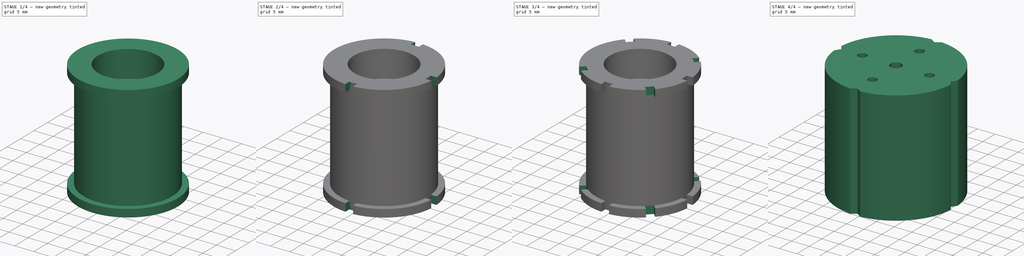
[diagram: build sequence overview — one tinted view per stage of 4, left to right]
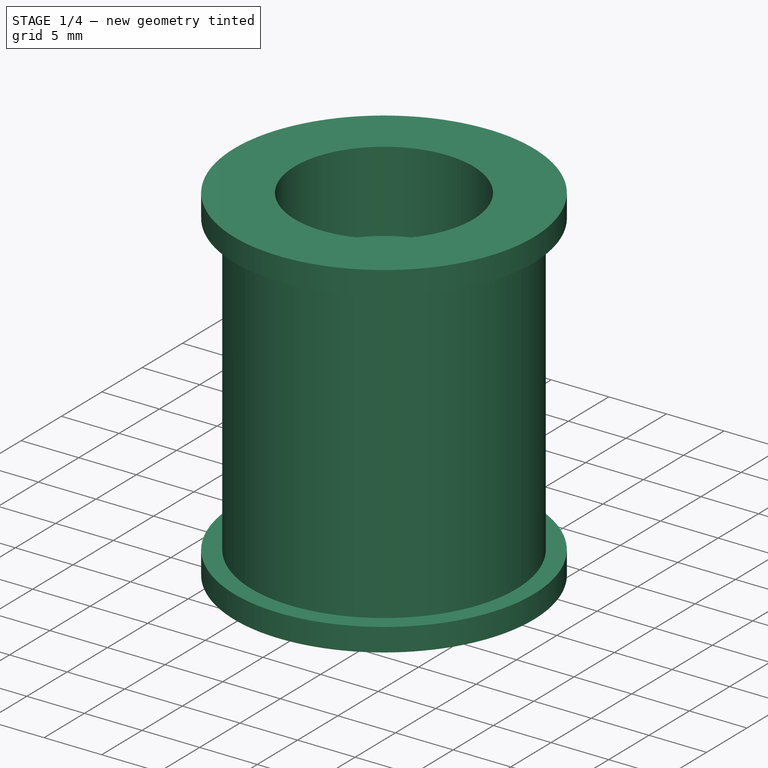
[diagram: stage 1 of 4 — iso view after this stage's code; geometry added in this stage tinted green]
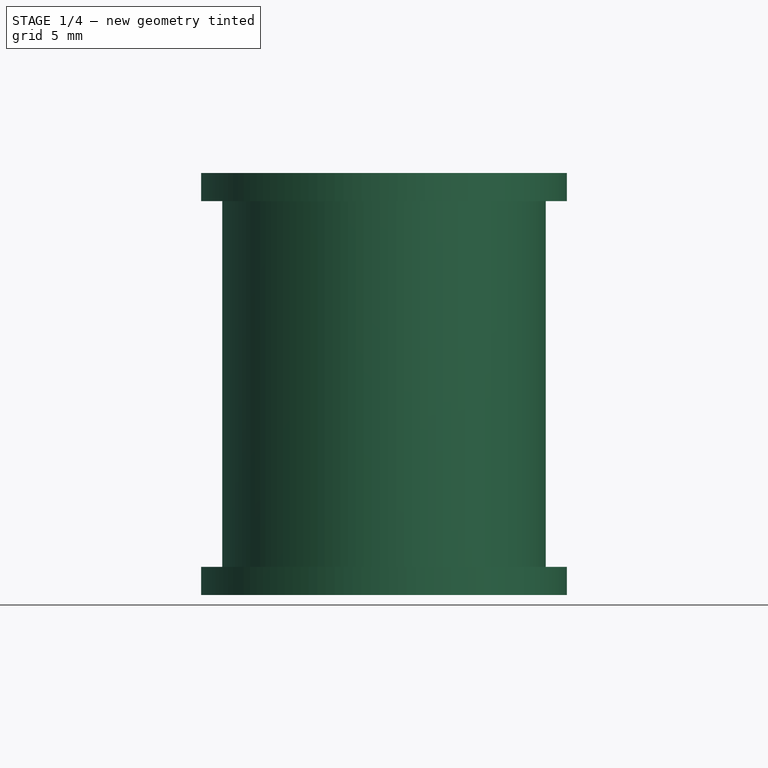
[diagram: stage 1 of 4 — front view after this stage's code; geometry added in this stage tinted green]
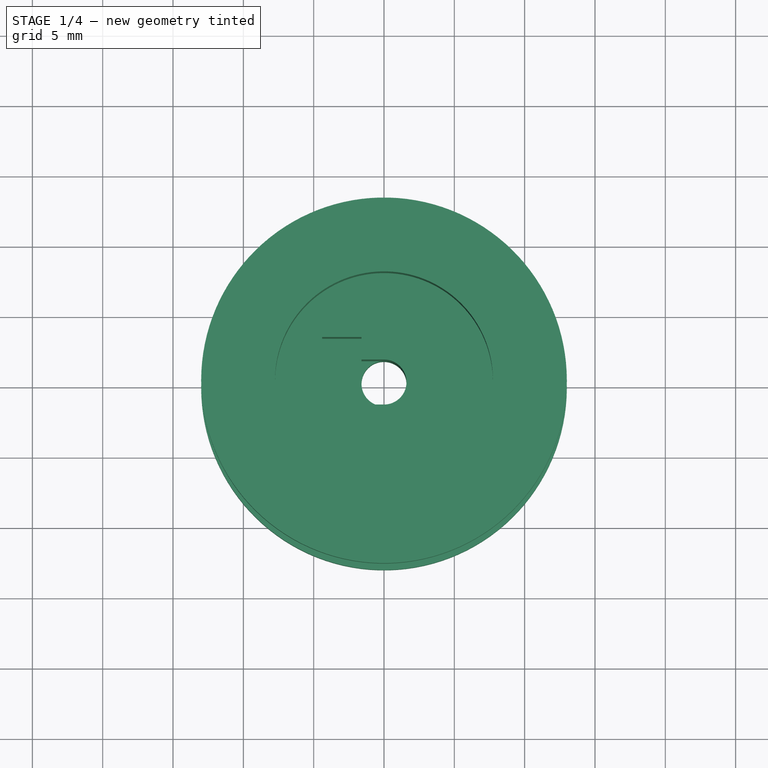
[diagram: stage 1 of 4 — top view after this stage's code; geometry added in this stage tinted green]
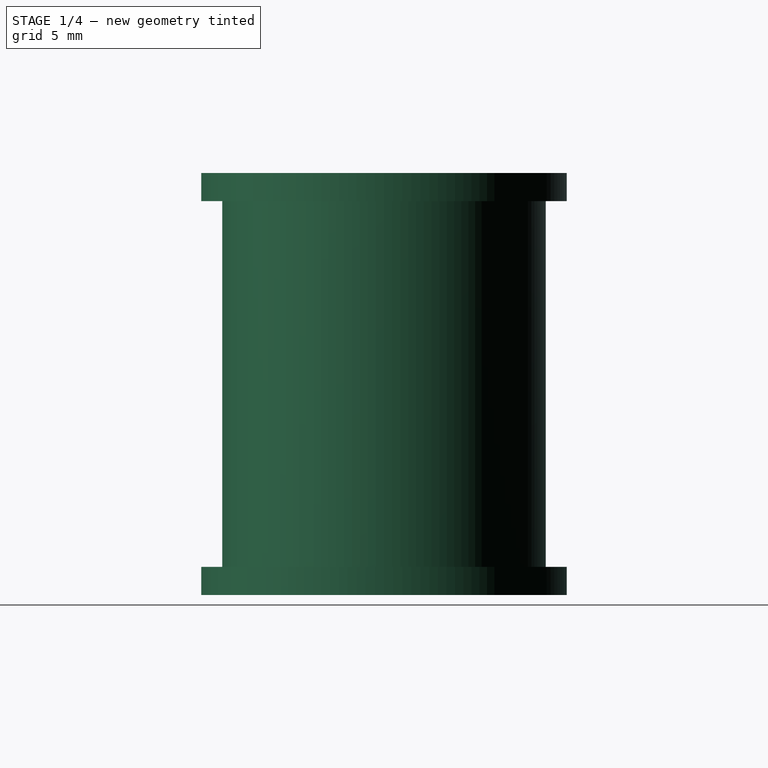
[diagram: stage 1 of 4 — right view after this stage's code; geometry added in this stage tinted green]
FCSTD DOCUMENT  (FreeCAD 1.0R39285 (Git))
Label: Rueda
License: All rights reserved
LicenseURL: https://en.wikipedia.org/wiki/All_rights_reserved
objects: Sketcher::SketchObject×9, PartDesign::Pocket×6, PartDesign::Pad×2, PartDesign::Body×2, PartDesign::Revolution×1, PartDesign::ShapeBinder×1, App::Part×1
note: 48 computed .brp shape members not serialized (recipe doc carries the construction recipe); baked Part::Feature solids carry a one-line shape summary decoded from their .brp

FEATURE [Sketcher::SketchObject] Sketch
  ArcFitTolerance = 1e-06
  AttachmentSupport = -> [XZ_Plane001]
  FullyConstrained = false
  MakeInternals = false
  MapMode = 5
  Placement = pos=(0,0,0) rot=(1,0,0;1.5708rad)
  sketch-geometry (44):
    g0: LineSegment [constr] StartX=0 StartY=0 StartZ=0 EndX=30 EndY=0 EndZ=0
    g1: LineSegment [constr] StartX=30 StartY=0 StartZ=0 EndX=30 EndY=30 EndZ=0
    g2: LineSegment [constr] StartX=30 StartY=30 StartZ=0 EndX=0 EndY=30 EndZ=0
    g3: LineSegment [constr] StartX=0 StartY=30 StartZ=0 EndX=0 EndY=0 EndZ=0
    g4: LineSegment [constr] StartX=15 StartY=0 StartZ=0 EndX=7.25 EndY=0 EndZ=0
    g5: LineSegment [constr] StartX=15 StartY=0 StartZ=0 EndX=22.75 EndY=0 EndZ=0
    g6: LineSegment StartX=7.25 StartY=0 StartZ=0 EndX=7.25 EndY=11.5 EndZ=0
    g7: LineSegment [constr] StartX=7.25 StartY=11.5 StartZ=0 EndX=22.75 EndY=11.5 EndZ=0
    g8: LineSegment StartX=22.75 StartY=11.5 StartZ=0 EndX=22.75 EndY=0 EndZ=0
    g9: LineSegment StartX=22.75 StartY=0 StartZ=0 EndX=28 EndY=0 EndZ=0
    g10: LineSegment StartX=28 StartY=0 StartZ=0 EndX=28 EndY=2 EndZ=0
    g11: LineSegment StartX=28 StartY=2 StartZ=0 EndX=26.5 EndY=2 EndZ=0
    g12: LineSegment StartX=26.5 StartY=2 StartZ=0 EndX=26.5 EndY=28 EndZ=0
    g13: LineSegment StartX=26.5 StartY=28 StartZ=0 EndX=28 EndY=28 EndZ=0
    g14: LineSegment StartX=28 StartY=28 StartZ=0 EndX=28 EndY=30 EndZ=0
    g15: LineSegment StartX=7.25 StartY=0 StartZ=0 EndX=2 EndY=0 EndZ=0
    g16: LineSegment StartX=2 StartY=0 StartZ=0 EndX=2 EndY=2 EndZ=0
    g17: LineSegment StartX=2 StartY=2 StartZ=0 EndX=3.5 EndY=2 EndZ=0
    g18: LineSegment StartX=3.5 StartY=2 StartZ=0 EndX=3.5 EndY=28 EndZ=0
    g19: LineSegment StartX=3.5 StartY=28 StartZ=0 EndX=2 EndY=28 EndZ=0
    g20: LineSegment StartX=2 StartY=28 StartZ=0 EndX=2 EndY=30 EndZ=0
    g21: LineSegment [constr] StartX=7.25 StartY=11.5 StartZ=0 EndX=7.25 EndY=30 EndZ=0
    g22: LineSegment [constr] StartX=22.75 StartY=11.5 StartZ=0 EndX=22.75 EndY=30 EndZ=0
    g23: LineSegment StartX=2 StartY=30 StartZ=0 EndX=7.25 EndY=30 EndZ=0
    g24: LineSegment StartX=22.75 StartY=30 StartZ=0 EndX=28 EndY=30 EndZ=0
    g25: LineSegment StartX=7.25 StartY=30 StartZ=0 EndX=7.25 EndY=23 EndZ=0
    g26: LineSegment [constr] StartX=7.25 StartY=23 StartZ=0 EndX=22.75 EndY=23 EndZ=0
    g27: LineSegment StartX=22.75 StartY=30 StartZ=0 EndX=22.75 EndY=23 EndZ=0
    g28: LineSegment [constr] StartX=15 StartY=23 StartZ=0 EndX=13.4 EndY=23 EndZ=0
    g29: LineSegment StartX=13.4 StartY=23 StartZ=0 EndX=7.25 EndY=23 EndZ=0
    g30: LineSegment [constr] StartX=15 StartY=23 StartZ=0 EndX=16.6 EndY=23 EndZ=0
    g31: LineSegment StartX=16.6 StartY=23 StartZ=0 EndX=22.75 EndY=23 EndZ=0
    g32: LineSegment StartX=13.4 StartY=23 StartZ=0 EndX=13.4 EndY=12.75 EndZ=0
    g33: LineSegment [constr] StartX=13.4 StartY=12.75 StartZ=0 EndX=14.3 EndY=12.75 EndZ=0
    g34: LineSegment StartX=13.4 StartY=12.75 StartZ=0 EndX=12.5 EndY=12.75 EndZ=0
    g35: LineSegment StartX=12.5 StartY=12.75 StartZ=0 EndX=12.5 EndY=11.5 EndZ=0
    g36: LineSegment StartX=12.5 StartY=11.5 StartZ=0 EndX=7.25 EndY=11.5 EndZ=0
    g37: LineSegment StartX=16.6 StartY=23 StartZ=0 EndX=16.6 EndY=12.75 EndZ=0
    g38: LineSegment StartX=16.6 StartY=12.75 StartZ=0 EndX=17.5 EndY=12.75 EndZ=0
    g39: LineSegment StartX=17.5 StartY=12.75 StartZ=0 EndX=17.5 EndY=11.5 EndZ=0
    g40: LineSegment StartX=17.5 StartY=11.5 StartZ=0 EndX=22.75 EndY=11.5 EndZ=0
    g41: LineSegment [constr] StartX=15 StartY=23 StartZ=0 EndX=15 EndY=11.5 EndZ=0
    g42: LineSegment [constr] StartX=16.6 StartY=12.75 StartZ=0 EndX=15 EndY=12.75 EndZ=0
    g43: LineSegment [constr] StartX=14.3 StartY=12.75 StartZ=0 EndX=15 EndY=12.75 EndZ=0
  constraints (121):
    c: Coincident(g0,g1)
    c: Coincident(g1,g2)
    c: Coincident(g2,g3)
    c: Coincident(g3,g0)
    c: Horizontal(g0)
    c: Horizontal(g2)
    c: Vertical(g1)
    c: Vertical(g3)
    c: Distance(g1,g3) = 30
    c: Distance(g0,g2) = 30
    c: Coincident(g0,g-1)
    c: Distance(g4) = 7.75
    c: Symmetric(g0,g0,g4)
    c: PointOnObject(g4,g0)
    c: Distance(g5) = 7.75
    c: Coincident(g5,g4)
    c: PointOnObject(g5,g0)
    c: Distance(g6) = 11.5
    c: Coincident(g6,g4)
    c: Vertical(g6)
    c: Distance(g7) = 15.5
    c: Coincident(g7,g6)
    c: Horizontal(g7)
    c: Coincident(g8,g7)
    c: Coincident(g8,g5)
    c: Distance(g9) = 5.25
    c: Coincident(g9,g5)
    c: PointOnObject(g9,g0)
    c: Distance(g10) = 2
    c: Coincident(g10,g9)
    c: Vertical(g10)
    c: Distance(g11) = 1.5
    c: Coincident(g11,g10)
    c: Horizontal(g11)
    c: Distance(g12) = 26
    c: Coincident(g12,g11)
    c: Vertical(g12)
    c: Distance(g13) = 1.5
    c: Coincident(g13,g12)
    c: Horizontal(g13)
    c: Distance(g14) = 2
    c: Coincident(g14,g13)
    c: Vertical(g14)
    c: Distance(g15) = 5.25
    c: Coincident(g15,g4)
    c: PointOnObject(g15,g0)
    c: Distance(g16) = 2
    c: Coincident(g16,g15)
    c: Vertical(g16)
    c: Distance(g17) = 1.5
    c: Coincident(g17,g16)
    c: Horizontal(g17)
    c: Distance(g18) = 26
    c: Coincident(g18,g17)
    c: Vertical(g18)
    c: Distance(g19) = 1.5
    c: Coincident(g19,g18)
    c: Horizontal(g19)
    c: Coincident(g20,g19)
    c: PointOnObject(g20,g2)
    c: Vertical(g20)
    c: Coincident(g21,g6)
    c: PointOnObject(g21,g2)
    c: Vertical(g21)
    c: Coincident(g22,g7)
    c: PointOnObject(g22,g2)
    c: Vertical(g22)
    c: Coincident(g23,g20)
    c: Coincident(g23,g21)
    c: Coincident(g24,g22)
    c: Coincident(g24,g14)
    c: Distance(g25) = 7
    c: Coincident(g25,g21)
    c: PointOnObject(g25,g21)
    c: Coincident(g26,g25)
    c: PointOnObject(g26,g22)
    c: Horizontal(g26)
    c: Coincident(g27,g22)
    c: Coincident(g27,g26)
    c: Distance(g28) = 1.6
    c: Symmetric(g26,g26,g28)
    c: PointOnObject(g28,g26)
    c: Coincident(g29,g28)
    c: Coincident(g29,g25)
    c: Distance(g30) = 1.6
    c: Coincident(g30,g28)
    c: PointOnObject(g30,g26)
    c: Coincident(g31,g30)
    c: Coincident(g31,g26)
    c: Distance(g32) = 10.25
    c: Coincident(g32,g28)
    c: Vertical(g32)
    c: Distance(g33) = 0.9
    c: Distance(g34) = 0.9
    c: Coincident(g34,g32)
    c: Horizontal(g34)
    c: Coincident(g35,g34)
    c: PointOnObject(g35,g7)
    c: Vertical(g35)
    c: Coincident(g36,g35)
    c: Coincident(g36,g6)
    c: Distance(g37) = 10.25
    c: Coincident(g37,g30)
    c: Vertical(g37)
    c: Distance(g38) = 0.9
    c: Coincident(g38,g37)
    c: Horizontal(g38)
    c: Coincident(g39,g38)
    c: PointOnObject(g39,g7)
    c: Vertical(g39)
    c: Distance(g40) = 5.25
    c: Coincident(g40,g39)
    c: Horizontal(g40)
    c: Coincident(g41,g28)
    c: Symmetric(g7,g7,g41)
    c: Coincident(g42,g37)
    c: PointOnObject(g42,g41)
    c: Horizontal(g42)
    c: Coincident(g43,g33)
    c: Coincident(g43,g42)
    c: Horizontal(g43)
FEATURE [PartDesign::Revolution] Revolution
  Angle = 360
  Angle2 = 60
  Axis = (0,-2.6e-15,-11.5)
  Base = (15,5.1e-15,23)
  Placement = pos=(0,0,0) rot=(1,0,0;1.5708rad)
  Profile = -> Sketch
  ReferenceAxis = -> Sketch [Axis13]
  Refine = true
  Reversed = true
  Suppressed = false
  Type = 0
FEATURE [Sketcher::SketchObject] Sketch001
  ArcFitTolerance = 1e-06
  AttachmentSupport = -> [Revolution]
  ExternalGeometry = -> [Revolution]
  FullyConstrained = false
  MakeInternals = false
  MapMode = 5
  Placement = pos=(0,1.01e-14,23) rot=(0,0,1;3.14159rad)
  sketch-geometry (12):
    g0: LineSegment [constr] StartX=-15 StartY=0 StartZ=0 EndX=-15 EndY=1.6 EndZ=0
    g1: LineSegment StartX=-15 StartY=1.6 StartZ=0 EndX=-13.4 EndY=1.6 EndZ=0
    g2: LineSegment [constr] StartX=-15 StartY=0 StartZ=0 EndX=-13.4 EndY=0 EndZ=0
    g3: LineSegment [constr] StartX=-13.4 StartY=0 StartZ=0 EndX=-13.4 EndY=3.2 EndZ=0
    g4: LineSegment StartX=-13.4 StartY=3.2 StartZ=0 EndX=-13.4 EndY=1.6 EndZ=0
    g5: LineSegment [constr] StartX=-13.4 StartY=0 StartZ=0 EndX=-13.4 EndY=-3.2 EndZ=0
    g6: LineSegment StartX=-13.4 StartY=-3.2 StartZ=0 EndX=-13.4 EndY=-1.6 EndZ=0
    g7: LineSegment StartX=-13.4 StartY=-1.6 StartZ=0 EndX=-15 EndY=-1.6 EndZ=0
    g8: LineSegment StartX=-13.4 StartY=-3.2 StartZ=0 EndX=-10.6 EndY=-3.2 EndZ=0
    g9: LineSegment StartX=-10.6 StartY=-3.2 StartZ=0 EndX=-10.6 EndY=3.2 EndZ=0
    g10: LineSegment StartX=-10.6 StartY=3.2 StartZ=0 EndX=-13.4 EndY=3.2 EndZ=0
    g11: ArcOfCircle CenterX=-15 CenterY=0 CenterZ=0 NormalX=0 NormalY=0 NormalZ=1 AngleXU=0 Radius=1.6 StartAngle=4.71239 EndAngle=7.85398
  constraints (31):
    c: Coincident(g0,g-4)
    c: PointOnObject(g0,g-3)
    c: Vertical(g0)
    c: Distance(g2) = 1.6
    c: Coincident(g2,g0)
    c: PointOnObject(g2,g-1)
    c: Coincident(g4,g3)
    c: Coincident(g4,g1)
    c: Vertical(g4)
    c: Distance(g6) = 1.6
    c: Coincident(g6,g5)
    c: Symmetric(g5,g5,g6)
    c: Vertical(g6)
    c: Distance(g7) = 1.6
    c: Coincident(g7,g6)
    c: PointOnObject(g7,g-3)
    c: Horizontal(g7)
    c: Distance(g8) = 2.8
    c: Coincident(g8,g5)
    c: Horizontal(g8)
    c: Distance(g9) = 6.4
    c: Coincident(g9,g8)
    c: Vertical(g9)
    c: Distance(g10) = 2.8
    c: Coincident(g10,g9)
    c: Coincident(g10,g3)
    c: Horizontal(g10)
    c: PointOnObject(g1,g11)
    c: PointOnObject(g2,g11)
    c: Coincident(g11,g0)
    c: Coincident(g11,g7)
FEATURE [PartDesign::Pocket] Pocket
  BaseFeature = -> Revolution
  Direction = (0,0,-1)
  Length = 7
  Length2 = 5
  Placement = pos=(0,0,0) rot=(1,0,0;1.5708rad)
  Profile = -> Sketch001
  ReferenceAxis = -> Sketch001 [N_Axis]
  Refine = true
  Suppressed = false
  Type = 0
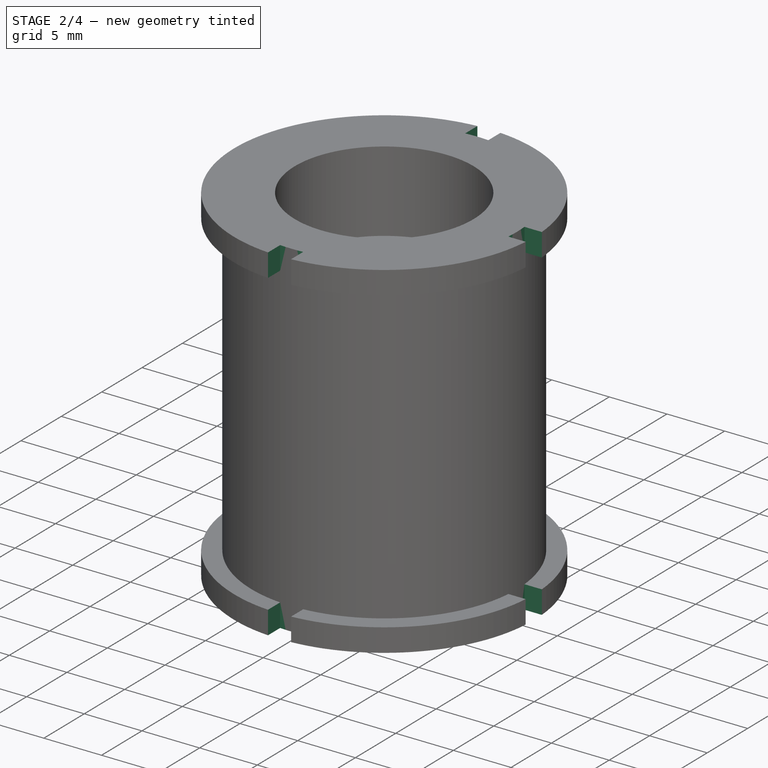
[diagram: stage 2 of 4 — iso view after this stage's code; geometry added in this stage tinted green]
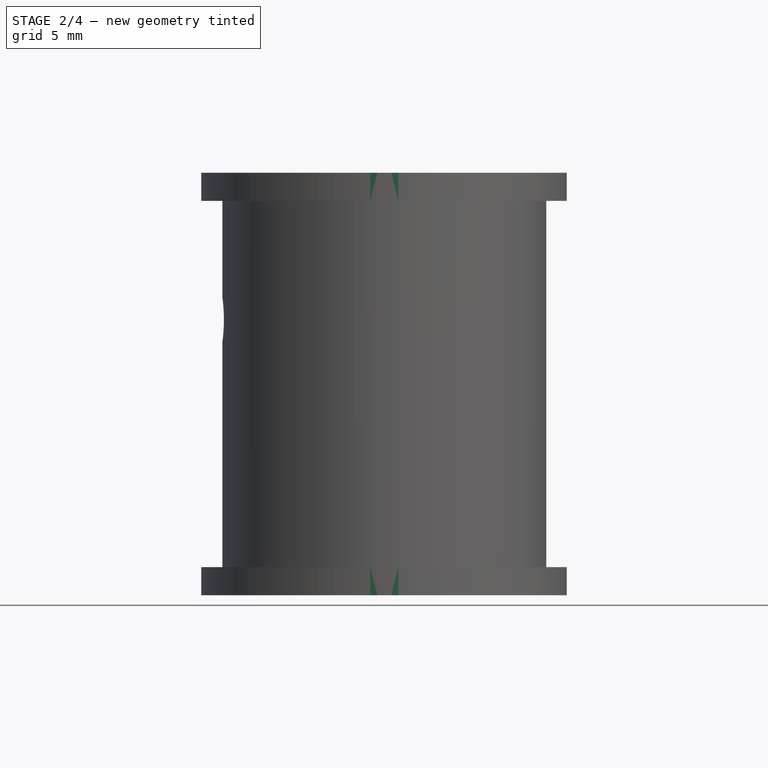
[diagram: stage 2 of 4 — front view after this stage's code; geometry added in this stage tinted green]
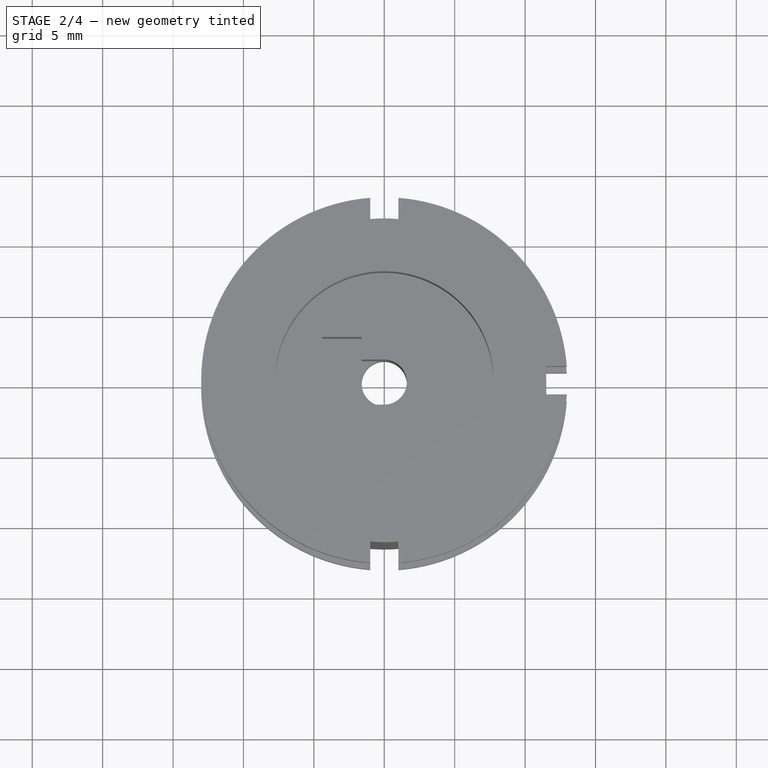
[diagram: stage 2 of 4 — top view after this stage's code; geometry added in this stage tinted green]
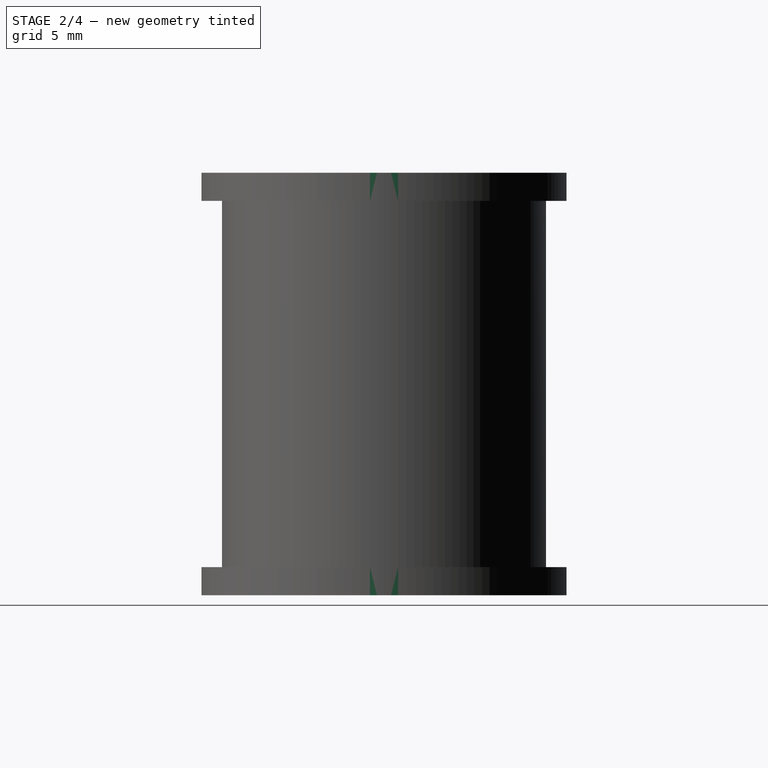
[diagram: stage 2 of 4 — right view after this stage's code; geometry added in this stage tinted green]
FEATURE [Sketcher::SketchObject] Sketch002
  ArcFitTolerance = 1e-06
  AttachmentSupport = -> [Pocket]
  ExternalGeometry = -> [Pocket]
  FullyConstrained = false
  MakeInternals = false
  MapMode = 5
  Placement = pos=(10.6,0,0) rot=(0.707107,0,0.707107;3.14159rad)
  sketch-geometry (2):
    g0: LineSegment [constr] StartX=16 StartY=3.2 StartZ=0 EndX=23 EndY=-3.2 EndZ=0
    g1: Circle CenterX=19.5662 CenterY=0 CenterZ=0 NormalX=0 NormalY=0 NormalZ=1 AngleXU=0 Radius=1.6
  constraints (4):
    c: Coincident(g0,g-5)
    c: Coincident(g0,g-6)
    c: Diameter(g1) = 3.2
    c: PointOnObject(g1,g-1)
FEATURE [PartDesign::Pocket] Pocket001
  BaseFeature = -> Pocket
  Direction = (-1,0,2e-16)
  Length = 7
  Length2 = 5
  Placement = pos=(0,0,0) rot=(1,0,0;1.5708rad)
  Profile = -> Sketch002
  ReferenceAxis = -> Sketch002 [N_Axis]
  Refine = true
  Suppressed = false
  Type = 2
FEATURE [Sketcher::SketchObject] Sketch003
  ArcFitTolerance = 1e-06
  AttachmentSupport = -> [Pocket001]
  ExternalGeometry = -> [Pocket001]
  FullyConstrained = true
  MakeInternals = false
  MapMode = 5
  Placement = pos=(0,1.32e-14,30) rot=(0,0,1;3.14159rad)
  sketch-geometry (22):
    g0: ArcOfCircle CenterX=-15 CenterY=6.2e-15 CenterZ=0 NormalX=0 NormalY=0 NormalZ=1 AngleXU=0 Radius=11.5 StartAngle=1.48373 EndAngle=1.65786
    g1: ArcOfCircle CenterX=-15 CenterY=6.2e-15 CenterZ=0 NormalX=0 NormalY=0 NormalZ=1 AngleXU=0 Radius=13 StartAngle=1.4938 EndAngle=1.6478
    g2: LineSegment [constr] StartX=-15 StartY=6.2e-15 StartZ=0 EndX=-14 EndY=0 EndZ=0
    g3: LineSegment [constr] StartX=-14 StartY=0 StartZ=0 EndX=-14 EndY=14 EndZ=0
    g4: LineSegment [constr] StartX=-14 StartY=14 StartZ=0 EndX=-16 EndY=14 EndZ=0
    g5: LineSegment [constr] StartX=-16 StartY=14 StartZ=0 EndX=-16 EndY=-14 EndZ=0
    g6: LineSegment [constr] StartX=-16 StartY=-14 StartZ=0 EndX=-14 EndY=-14 EndZ=0
    g7: LineSegment [constr] StartX=-14 StartY=-14 StartZ=0 EndX=-14 EndY=0 EndZ=0
    g8: LineSegment [constr] StartX=-14 StartY=0 StartZ=0 EndX=-14 EndY=-1 EndZ=0
    g9: LineSegment [constr] StartX=-14 StartY=-1 StartZ=0 EndX=-29 EndY=-1 EndZ=0
    g10: LineSegment [constr] StartX=-29 StartY=-1 StartZ=0 EndX=-29 EndY=1 EndZ=0
    g11: LineSegment [constr] StartX=-29 StartY=1 StartZ=0 EndX=-14 EndY=1 EndZ=0
    g12: ArcOfCircle CenterX=-15 CenterY=6.2e-15 CenterZ=0 NormalX=0 NormalY=0 NormalZ=1 AngleXU=0 Radius=13 StartAngle=4.63539 EndAngle=4.78939
    g13: ArcOfCircle CenterX=-15 CenterY=6.2e-15 CenterZ=0 NormalX=0 NormalY=0 NormalZ=1 AngleXU=0 Radius=11.5 StartAngle=4.62532 EndAngle=4.79946
    g14: ArcOfCircle CenterX=-15 CenterY=6.2e-15 CenterZ=0 NormalX=0 NormalY=0 NormalZ=1 AngleXU=0 Radius=13 StartAngle=3.06459 EndAngle=3.21859
    g15: ArcOfCircle CenterX=-15 CenterY=6.2e-15 CenterZ=0 NormalX=0 NormalY=0 NormalZ=1 AngleXU=0 Radius=11.5 StartAngle=3.05453 EndAngle=3.22866
    g16: LineSegment StartX=-14 StartY=-11.4564 StartZ=0 EndX=-14 EndY=-12.9615 EndZ=0
    g17: LineSegment StartX=-16 StartY=-11.4564 StartZ=0 EndX=-16 EndY=-12.9615 EndZ=0
    g18: LineSegment StartX=-27.9615 StartY=1 StartZ=0 EndX=-26.4564 EndY=1 EndZ=0
    g19: LineSegment StartX=-26.4564 StartY=-1 StartZ=0 EndX=-27.9615 EndY=-1 EndZ=0
    g20: LineSegment StartX=-16 StartY=11.4564 StartZ=0 EndX=-16 EndY=12.9615 EndZ=0
    g21: LineSegment StartX=-14 StartY=12.9615 StartZ=0 EndX=-14 EndY=11.4564 EndZ=0
  constraints (65):
    c: Coincident(g0,g-4)
    c: Equal(g0,g-4)
    c: Diameter(g1) = 26
    c: Coincident(g1,g0)
    c: Distance(g2) = 1
    c: Coincident(g2,g0)
    c: PointOnObject(g2,g-1)
    c: Distance(g3) = 14
    c: Coincident(g3,g2)
    c: Vertical(g3)
    c: Distance(g4) = 2
    c: Coincident(g4,g3)
    c: Horizontal(g4)
    c: Distance(g5) = 28
    c: Coincident(g5,g4)
    c: Vertical(g5)
    c: Distance(g6) = 2
    c: Coincident(g6,g5)
    c: Horizontal(g6)
    c: Coincident(g7,g6)
    c: Coincident(g7,g2)
    c: Distance(g8) = 1
    c: Coincident(g8,g2)
    c: PointOnObject(g8,g7)
    c: Distance(g9) = 15
    c: Coincident(g9,g8)
    c: Horizontal(g9)
    c: Distance(g10) = 2
    c: Coincident(g10,g9)
    c: Vertical(g10)
    c: Coincident(g11,g10)
    c: PointOnObject(g11,g3)
    c: Horizontal(g11)
    c: PointOnObject(g12,g7)
    c: PointOnObject(g1,g3)
    c: PointOnObject(g0,g3)
    c: PointOnObject(g13,g7)
    c: Equal(g1,g12)
    c: PointOnObject(g14,g9)
    c: PointOnObject(g12,g5)
    c: Coincident(g1,g12)
    c: Equal(g0,g13)
    c: PointOnObject(g15,g9)
    c: PointOnObject(g13,g5)
    c: Coincident(g0,g13)
    c: Equal(g1,g14)
    c: PointOnObject(g1,g5)
    c: PointOnObject(g14,g11)
    c: Coincident(g1,g14)
    c: Equal(g0,g15)
    c: PointOnObject(g0,g5)
    c: PointOnObject(g15,g11)
    c: Coincident(g0,g15)
    c: Coincident(g16,g13)
    c: Coincident(g16,g12)
    c: Coincident(g17,g13)
    c: Coincident(g17,g12)
    c: Coincident(g18,g14)
    c: Coincident(g18,g15)
    c: Coincident(g19,g15)
    c: Coincident(g19,g14)
    c: Coincident(g20,g0)
    c: Coincident(g20,g1)
    c: Coincident(g21,g1)
    c: Coincident(g21,g0)
FEATURE [PartDesign::Pocket] Pocket002
  BaseFeature = -> Pocket001
  Direction = (0,0,-1)
  Length = 0
  Length2 = 5
  Placement = pos=(0,0,0) rot=(1,0,0;1.5708rad)
  Profile = -> Sketch003
  ReferenceAxis = -> Sketch003 [N_Axis]
  Refine = true
  Suppressed = false
  Type = 3
  UpToFace = -> Pocket001 [Face3]
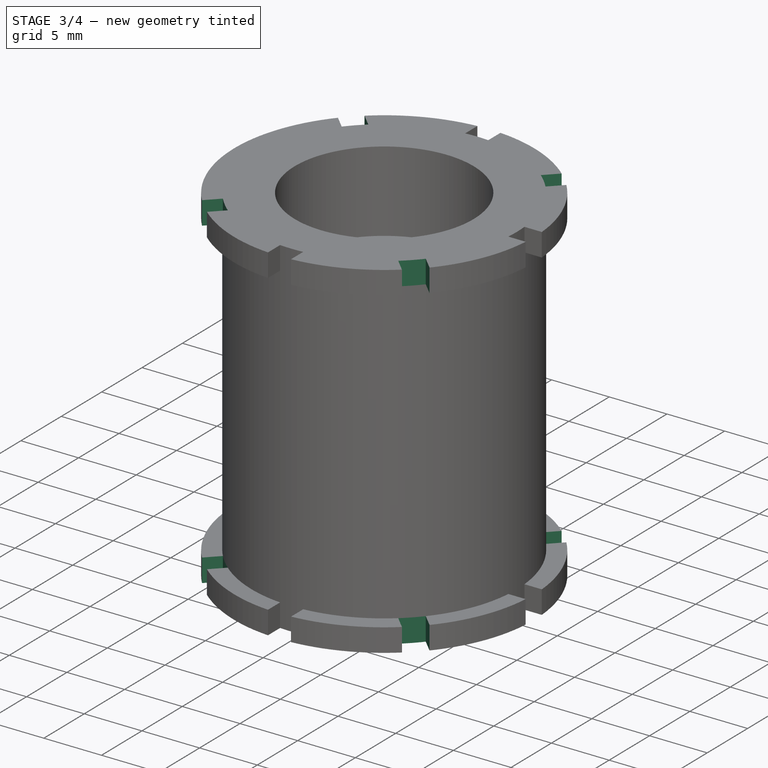
[diagram: stage 3 of 4 — iso view after this stage's code; geometry added in this stage tinted green]
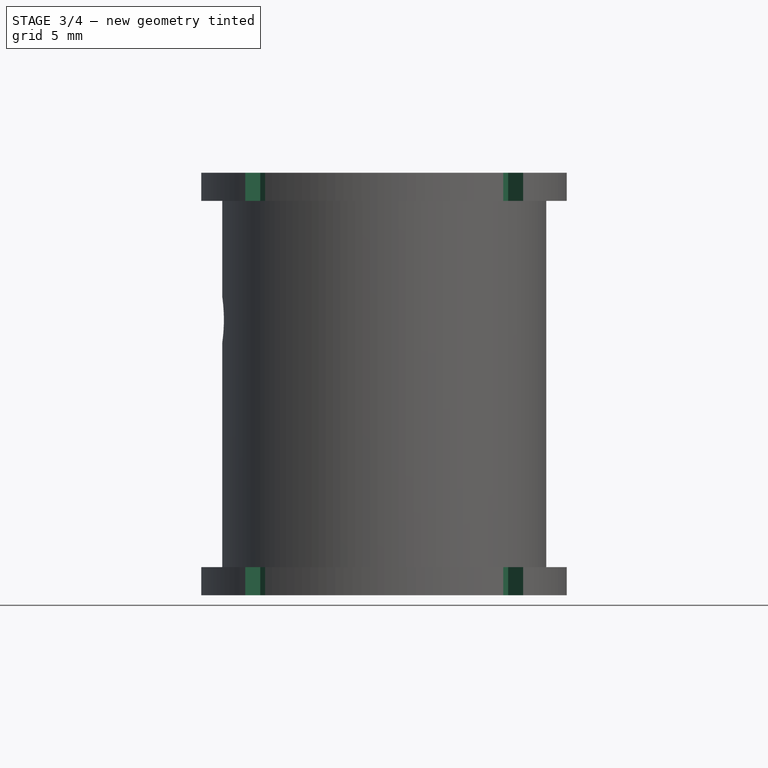
[diagram: stage 3 of 4 — front view after this stage's code; geometry added in this stage tinted green]
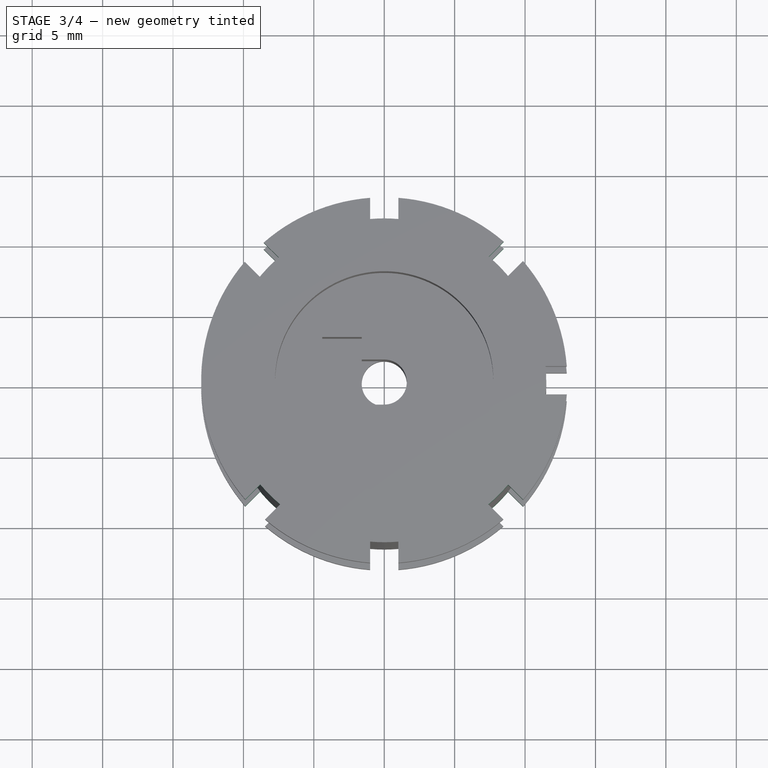
[diagram: stage 3 of 4 — top view after this stage's code; geometry added in this stage tinted green]
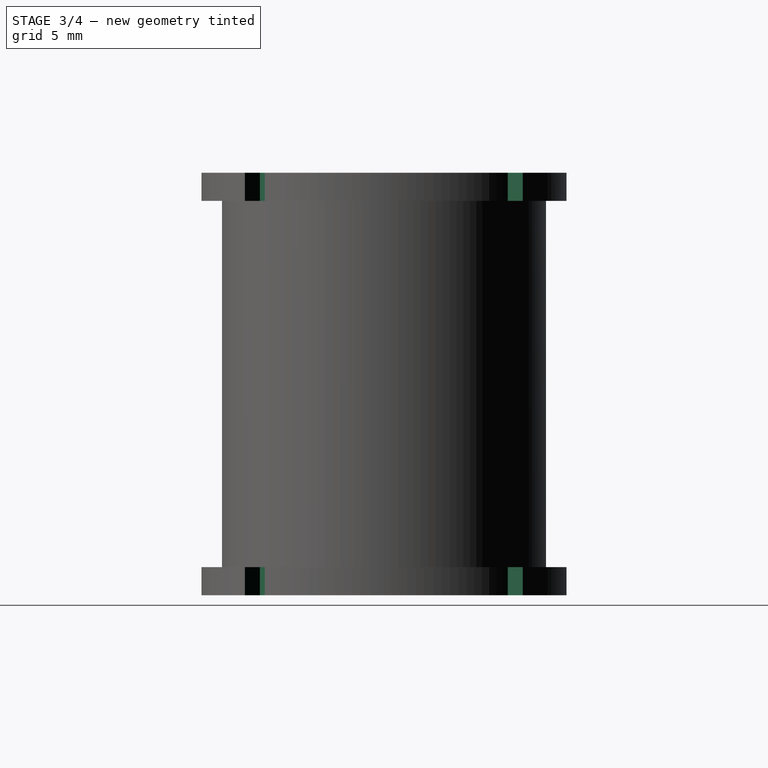
[diagram: stage 3 of 4 — right view after this stage's code; geometry added in this stage tinted green]
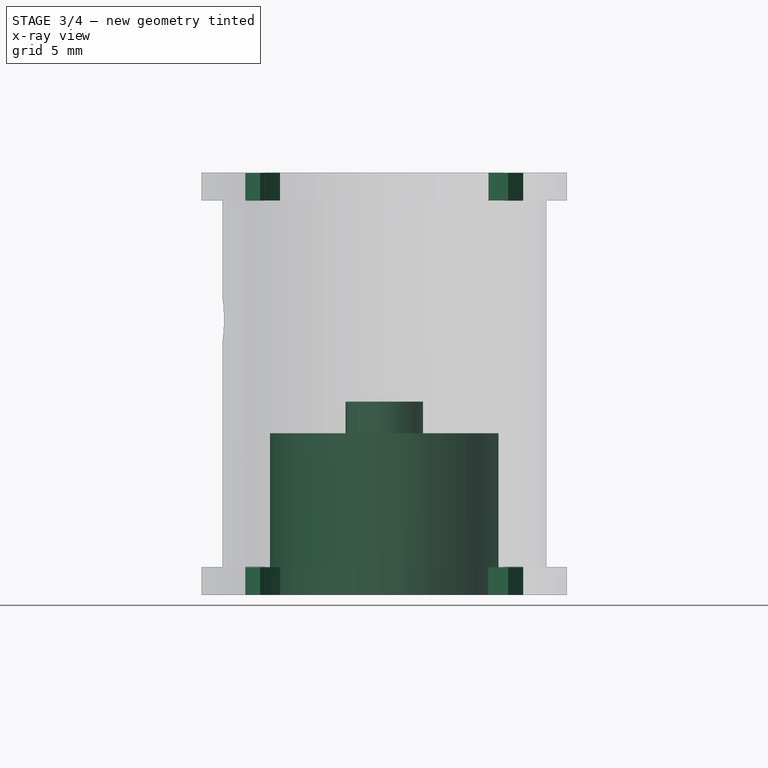
[diagram: stage 3 of 4 — x-ray composite at the front view; earlier geometry ghosted, this stage's added geometry solid]
FEATURE [Sketcher::SketchObject] Sketch004
  ArcFitTolerance = 1e-06
  AttachmentSupport = -> [Pocket002]
  ExternalGeometry = -> [Pocket002]
  FullyConstrained = false
  MakeInternals = false
  MapMode = 5
  Placement = pos=(0,1.32e-14,30) rot=(0,0,1;3.14159rad)
  sketch-geometry (32):
    g0: LineSegment [constr] StartX=-15 StartY=1.23e-14 StartZ=0 EndX=-15 EndY=-13 EndZ=0
    g1: LineSegment [constr] StartX=-15 StartY=-13 StartZ=0 EndX=-2 EndY=-13 EndZ=0
    g2: LineSegment [constr] StartX=-2 StartY=-13 StartZ=0 EndX=-2 EndY=13 EndZ=0
    g3: LineSegment [constr] StartX=-2 StartY=13 StartZ=0 EndX=-28 EndY=13 EndZ=0
    g4: LineSegment [constr] StartX=-28 StartY=13 StartZ=0 EndX=-28 EndY=-13 EndZ=0
    g5: LineSegment [constr] StartX=-28 StartY=-13 StartZ=0 EndX=-15 EndY=-13 EndZ=0
    g6: LineSegment [constr] StartX=-28 StartY=13 StartZ=0 EndX=-2 EndY=-13 EndZ=0
    g7: LineSegment [constr] StartX=-28 StartY=-13 StartZ=0 EndX=-2 EndY=13 EndZ=0
    g8: LineSegment [constr] StartX=-3.52745 StartY=11.4726 StartZ=0 EndX=-2.82034 EndY=10.7654 EndZ=0
    g9: LineSegment [constr] StartX=-3.52745 StartY=11.4726 StartZ=0 EndX=-4.23456 EndY=12.1797 EndZ=0
    g10: LineSegment [constr] StartX=-4.23456 StartY=12.1797 StartZ=0 EndX=-28 EndY=-11.6203 EndZ=0
    g11: LineSegment [constr] StartX=-2.82034 StartY=10.7654 StartZ=0 EndX=-26.6384 EndY=-13 EndZ=0
    g12: LineSegment [constr] StartX=-26.804 StartY=11.804 StartZ=0 EndX=-26.0969 EndY=12.5111 EndZ=0
    g13: LineSegment [constr] StartX=-26.804 StartY=11.804 StartZ=0 EndX=-27.5111 EndY=11.0969 EndZ=0
    g14: LineSegment [constr] StartX=-26.0969 StartY=12.5111 StartZ=0 EndX=-2 EndY=-11.5054 EndZ=0
    g15: LineSegment [constr] StartX=-27.5111 StartY=11.0969 StartZ=0 EndX=-3.19677 EndY=-13 EndZ=0
    g16: ArcOfCircle CenterX=-15 CenterY=1.23e-14 CenterZ=0 NormalX=0 NormalY=0 NormalZ=1 AngleXU=0 Radius=13 StartAngle=3.85162 EndAngle=4.0015
    g17: ArcOfCircle CenterX=-15 CenterY=1.23e-14 CenterZ=0 NormalX=0 NormalY=0 NormalZ=1 AngleXU=0 Radius=11.5 StartAngle=3.84168 EndAngle=4.01139
    g18: ArcOfCircle CenterX=-15 CenterY=1.23e-14 CenterZ=0 NormalX=0 NormalY=0 NormalZ=1 AngleXU=0 Radius=13 StartAngle=5.43106 EndAngle=5.57861
    g19: ArcOfCircle CenterX=-15 CenterY=-4.2054e-07 CenterZ=0 NormalX=0 NormalY=0 NormalZ=1 AngleXU=0 Radius=11.5 StartAngle=5.42176 EndAngle=5.58896
    g20: ArcOfCircle CenterX=-15 CenterY=1.23e-14 CenterZ=0 NormalX=0 NormalY=0 NormalZ=1 AngleXU=0 Radius=13 StartAngle=0.708677 EndAngle=0.862215
    g21: ArcOfCircle CenterX=-15 CenterY=-4.2054e-07 CenterZ=0 NormalX=0 NormalY=0 NormalZ=1 AngleXU=0 Radius=11.5 StartAngle=0.698791 EndAngle=0.872163
    g22: ArcOfCircle CenterX=-15 CenterY=-4.2054e-07 CenterZ=0 NormalX=0 NormalY=0 NormalZ=1 AngleXU=0 Radius=11.5 StartAngle=2.26836 EndAngle=2.44121
    g23: ArcOfCircle CenterX=-15 CenterY=0 CenterZ=0 NormalX=0 NormalY=0 NormalZ=1 AngleXU=0 Radius=13 StartAngle=2.27871 EndAngle=2.4319
    g24: LineSegment StartX=-23.4826 StartY=-9.85119 StartZ=0 EndX=-22.4173 EndY=-8.78827 EndZ=0
    g25: LineSegment StartX=-24.8584 StartY=-8.47415 StartZ=0 EndX=-23.7951 EndY=-7.40924 EndZ=0
    g26: LineSegment StartX=-6.44096 StartY=-9.78483 StartZ=0 EndX=-7.50944 EndY=-8.72591 EndZ=0
    g27: LineSegment StartX=-5.09549 StartY=-8.42025 StartZ=0 EndX=-6.16169 EndY=-7.3576 EndZ=0
    g28: LineSegment StartX=-6.19537 StartY=7.39787 StartZ=0 EndX=-5.13009 EndY=8.46079 EndZ=0
    g29: LineSegment StartX=-7.60352 StartY=8.8058 StartZ=0 EndX=-6.54015 EndY=9.87071 EndZ=0
    g30: LineSegment StartX=-23.4533 StartY=9.87633 StartZ=0 EndX=-22.3871 EndY=8.81368 EndZ=0
    g31: LineSegment StartX=-23.7928 StartY=7.41188 StartZ=0 EndX=-24.8613 EndY=8.4708 EndZ=0
  constraints (77):
    c: Distance(g0) = 13
    c: Coincident(g0,g-8)
    c: Vertical(g0)
    c: Distance(g1) = 13
    c: Coincident(g1,g0)
    c: Horizontal(g1)
    c: Distance(g3) = 26
    c: Coincident(g3,g2)
    c: Horizontal(g3)
    c: Distance(g4) = 26
    c: Coincident(g4,g3)
    c: Vertical(g4)
    c: Coincident(g5,g4)
    c: Coincident(g5,g0)
    c: Horizontal(g5)
    c: Coincident(g6,g3)
    c: Coincident(g6,g1)
    c: Coincident(g7,g4)
    c: Coincident(g7,g2)
    c: Distance(g8) = 1
    c: PointOnObject(g8,g7)
    c: Distance(g9) = 1
    c: Coincident(g9,g8)
    c: Coincident(g10,g9)
    c: PointOnObject(g10,g4)
    c: Coincident(g11,g8)
    c: PointOnObject(g11,g5)
    c: Distance(g12) = 1
    c: PointOnObject(g12,g6)
    c: Distance(g13) = 1
    c: Coincident(g13,g12)
    c: Coincident(g14,g12)
    c: PointOnObject(g14,g2)
    c: Coincident(g15,g13)
    c: PointOnObject(g15,g1)
    c: Coincident(g16,g0)
    c: Coincident(g17,g0)
    c: PointOnObject(g17,g10)
    c: PointOnObject(g16,g10)
    c: PointOnObject(g22,g15)
    c: PointOnObject(g23,g15)
    c: PointOnObject(g17,g11)
    c: Equal(g16,g18)
    c: PointOnObject(g16,g11)
    c: Coincident(g16,g18)
    c: PointOnObject(g19,g15)
    c: PointOnObject(g18,g15)
    c: Equal(g18,g20)
    c: PointOnObject(g18,g14)
    c: Coincident(g18,g20)
    c: Equal(g19,g21)
    c: PointOnObject(g19,g14)
    c: PointOnObject(g21,g11)
    c: Coincident(g19,g21)
    c: PointOnObject(g20,g11)
    c: PointOnObject(g20,g10)
    c: Equal(g21,g22)
    c: PointOnObject(g21,g10)
    c: Coincident(g21,g22)
    c: PointOnObject(g22,g14)
    c: PointOnObject(g23,g14)
    c: Coincident(g24,g16)
    c: Coincident(g24,g17)
    c: Coincident(g25,g16)
    c: Coincident(g25,g17)
    c: Coincident(g26,g18)
    c: Coincident(g26,g19)
    c: Coincident(g27,g18)
    c: Coincident(g27,g19)
    c: Coincident(g28,g21)
    c: Coincident(g28,g20)
    c: Coincident(g29,g21)
    c: Coincident(g29,g20)
    c: Coincident(g30,g23)
    c: Coincident(g30,g22)
    c: Coincident(g31,g22)
    c: Coincident(g31,g23)
FEATURE [PartDesign::Pocket] Pocket003
  BaseFeature = -> Pocket002
  Direction = (0,0,-1)
  Length = 0
  Length2 = 5
  Placement = pos=(0,0,0) rot=(1,0,0;1.5708rad)
  Profile = -> Sketch004
  ReferenceAxis = -> Sketch004 [N_Axis]
  Refine = true
  Suppressed = false
  Type = 3
  UpToFace = -> Pocket002 [Face14]
FEATURE [PartDesign::Body] Body001  label="MoldeCubierta"
  AllowCompound = false
  Group = -> [CopyPocket003,Sketch005,Pad,Sketch006,Pad001]
  Origin = -> Origin002
  Tip = -> Pad001
FEATURE [Sketcher::SketchObject] Sketch007
  ArcFitTolerance = 1e-06
  AttachmentSupport = -> [Pocket003]
  ExternalGeometry = -> [Pocket003]
  FullyConstrained = true
  MakeInternals = false
  MapMode = 5
  Placement = pos=(0,0,0) rot=(1,0,0;3.14159rad)
  sketch-geometry (1):
    g0: Circle CenterX=15 CenterY=0 CenterZ=0 NormalX=0 NormalY=0 NormalZ=1 AngleXU=0 Radius=8.125
  constraints (2):
    c: Diameter(g0) = 16.25
    c: Coincident(g0,g-3)
FEATURE [PartDesign::Pocket] Pocket004
  BaseFeature = -> Pocket003
  Direction = (0,0,1)
  Length = 0
  Length2 = 5
  Placement = pos=(0,0,0) rot=(1,0,0;1.5708rad)
  Profile = -> Sketch007
  ReferenceAxis = -> Sketch007 [N_Axis]
  Refine = true
  Suppressed = false
  Type = 3
  UpToFace = -> Pocket003 [Face82]
FEATURE [Sketcher::SketchObject] Sketch008
  ArcFitTolerance = 1e-06
  AttachmentSupport = -> [Pocket004]
  ExternalGeometry = -> [Pocket004]
  FullyConstrained = true
  MakeInternals = false
  MapMode = 5
  Placement = pos=(0,5.1e-15,11.5) rot=(1,0,0;3.14159rad)
  sketch-geometry (1):
    g0: Circle CenterX=15 CenterY=0 CenterZ=0 NormalX=0 NormalY=0 NormalZ=1 AngleXU=0 Radius=2.75
  constraints (2):
    c: Diameter(g0) = 5.5
    c: Coincident(g0,g-3)
FEATURE [PartDesign::Pocket] Pocket005
  BaseFeature = -> Pocket004
  Direction = (0,0,1)
  Length = 2.25
  Length2 = 5
  Placement = pos=(0,0,0) rot=(1,0,0;1.5708rad)
  Profile = -> Sketch008
  ReferenceAxis = -> Sketch008 [N_Axis]
  Refine = true
  Suppressed = false
  Type = 0
FEATURE [PartDesign::Body] Body  label="Llanta"
  AllowCompound = false
  Group = -> [Sketch,Revolution,Sketch001,Pocket,Sketch002,Pocket001,Sketch003,Pocket002,Sketch004,Pocket003,Sketch007,Pocket004,Sketch008,Pocket005]
  Origin = -> Origin001
  Tip = -> Pocket005
FEATURE [App::Part] Part
  Group = -> [Body,Body001]
  Origin = -> Origin
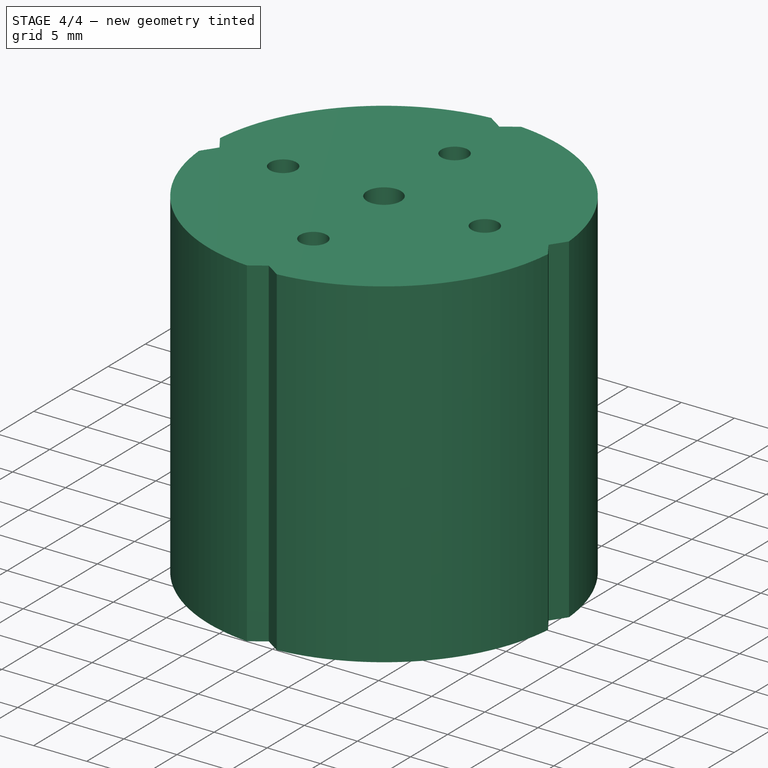
[diagram: stage 4 of 4 — iso view after this stage's code; geometry added in this stage tinted green]
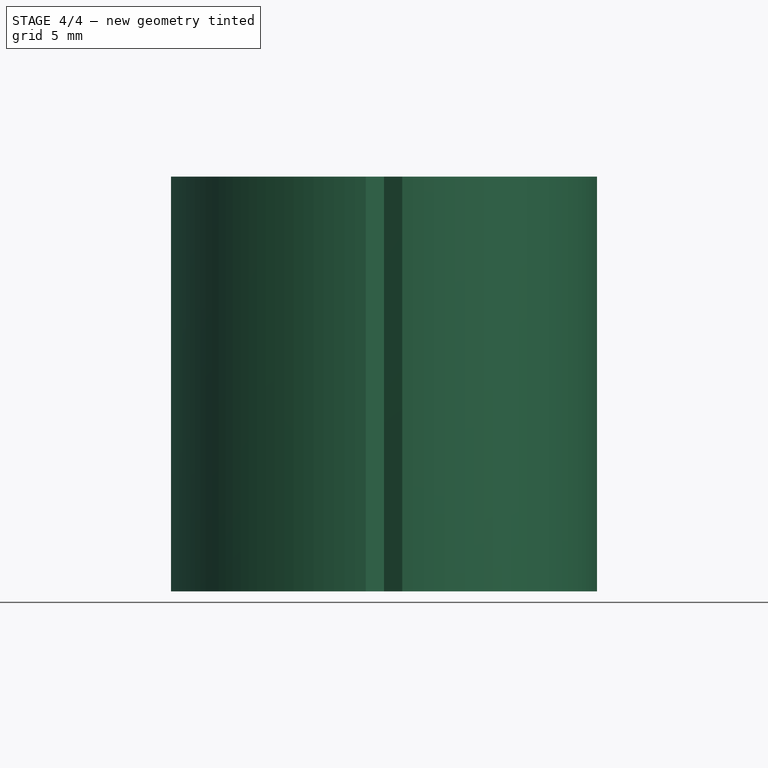
[diagram: stage 4 of 4 — front view after this stage's code; geometry added in this stage tinted green]
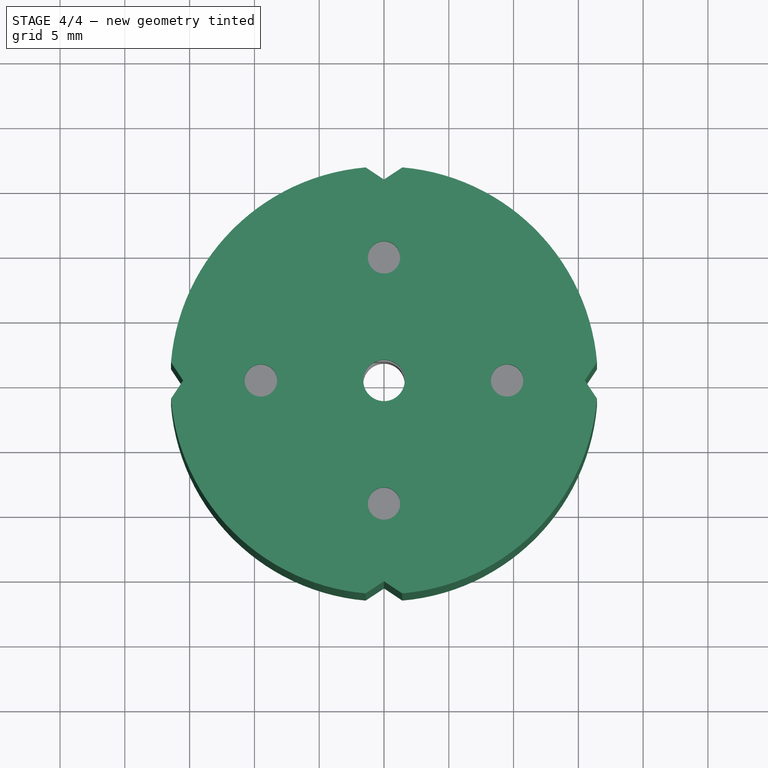
[diagram: stage 4 of 4 — top view after this stage's code; geometry added in this stage tinted green]
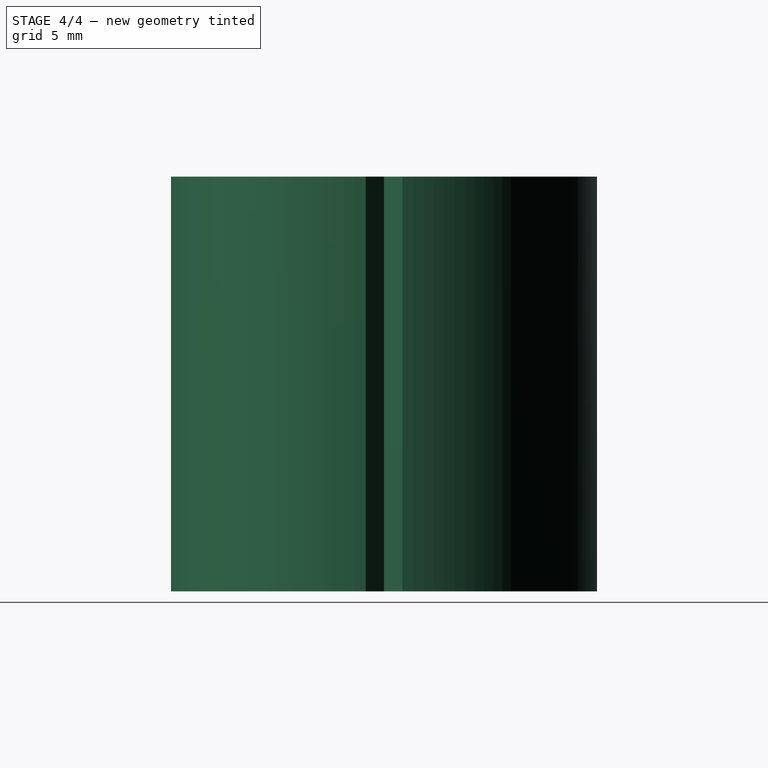
[diagram: stage 4 of 4 — right view after this stage's code; geometry added in this stage tinted green]
FEATURE [PartDesign::ShapeBinder] CopyPocket003
  Placement = pos=(0,0,0) rot=(1,0,0;1.5708rad)
  TraceSupport = false
FEATURE [Sketcher::SketchObject] Sketch005
  ArcFitTolerance = 1e-06
  AttachmentSupport = -> [CopyPocket003]
  ExternalGeometry = -> [CopyPocket003]
  FullyConstrained = false
  MakeInternals = false
  MapMode = 5
  Placement = pos=(0,1.32e-14,30) rot=(0,0,1;3.14159rad)
  sketch-geometry (36):
    g0: Circle CenterX=-15 CenterY=0 CenterZ=0 NormalX=0 NormalY=0 NormalZ=1 AngleXU=0 Radius=1.6
    g1: LineSegment [constr] StartX=-15 StartY=0 StartZ=0 EndX=-15 EndY=9.5 EndZ=0
    g2: LineSegment [constr] StartX=-15 StartY=0 StartZ=0 EndX=-5.5 EndY=0 EndZ=0
    g3: LineSegment [constr] StartX=-15 StartY=0 StartZ=0 EndX=-15 EndY=-9.5 EndZ=0
    g4: LineSegment [constr] StartX=-15 StartY=0 StartZ=0 EndX=-24.5 EndY=0 EndZ=0
    g5: Circle CenterX=-24.5 CenterY=0 CenterZ=0 NormalX=0 NormalY=0 NormalZ=1 AngleXU=0 Radius=1.25
    g6: Circle CenterX=-5.5 CenterY=0 CenterZ=0 NormalX=0 NormalY=0 NormalZ=1 AngleXU=0 Radius=1.25
    g7: Circle CenterX=-15 CenterY=9.5 CenterZ=0 NormalX=0 NormalY=0 NormalZ=1 AngleXU=0 Radius=1.25
    g8: Circle CenterX=-15 CenterY=-9.5 CenterZ=0 NormalX=0 NormalY=0 NormalZ=1 AngleXU=0 Radius=1.25
    g9: LineSegment [constr] StartX=-15 StartY=0 StartZ=0 EndX=-31.5 EndY=0 EndZ=0
    g10: LineSegment [constr] StartX=-15 StartY=0 StartZ=0 EndX=1.5 EndY=0 EndZ=0
    g11: LineSegment [constr] StartX=-15 StartY=0 StartZ=0 EndX=-15 EndY=16.5 EndZ=0
    g12: ArcOfCircle CenterX=-15 CenterY=0 CenterZ=0 NormalX=0 NormalY=0 NormalZ=1 AngleXU=0 Radius=16.5 StartAngle=3.22712 EndAngle=4.62686
    g13: LineSegment [constr] StartX=-15 StartY=0 StartZ=0 EndX=-15 EndY=-16.5 EndZ=0
    g14: LineSegment [constr] StartX=-15 StartY=16.5 StartZ=0 EndX=-13.5 EndY=16.5 EndZ=0
    g15: LineSegment [constr] StartX=-15 StartY=16.5 StartZ=0 EndX=-16.5 EndY=16.5 EndZ=0
    g16: LineSegment [constr] StartX=-31.5 StartY=0 StartZ=0 EndX=-31.5 EndY=-1.5 EndZ=0
    g17: LineSegment [constr] StartX=-15 StartY=-16.5 StartZ=0 EndX=-13.5 EndY=-16.5 EndZ=0
    g18: LineSegment [constr] StartX=-15 StartY=-16.5 StartZ=0 EndX=-16.5 EndY=-16.5 EndZ=0
    g19: LineSegment [constr] StartX=1.5 StartY=0 StartZ=0 EndX=1.5 EndY=1.5 EndZ=0
    g20: LineSegment [constr] StartX=1.5 StartY=0 StartZ=0 EndX=1.5 EndY=-1.5 EndZ=0
    g21: LineSegment [constr] StartX=1.5 StartY=0 StartZ=0 EndX=0.5 EndY=0 EndZ=0
    g22: LineSegment [constr] StartX=-15 StartY=-16.5 StartZ=0 EndX=-15 EndY=-15.5 EndZ=0
    g23: LineSegment [constr] StartX=-31.5 StartY=0 StartZ=0 EndX=-30.5 EndY=0 EndZ=0
    g24: LineSegment [constr] StartX=-15 StartY=16.5 StartZ=0 EndX=-15 EndY=15.5 EndZ=0
    g25: LineSegment StartX=-15 StartY=15.5 StartZ=0 EndX=-13.5905 EndY=16.4397 EndZ=0
    g26: LineSegment StartX=-15 StartY=15.5 StartZ=0 EndX=-16.4095 EndY=16.4397 EndZ=0
    g27: LineSegment StartX=0.5 StartY=0 StartZ=0 EndX=1.43968 EndY=1.40953 EndZ=0
    g28: LineSegment StartX=0.5 StartY=0 StartZ=0 EndX=1.43968 EndY=-1.40953 EndZ=0
    g29: LineSegment StartX=-15 StartY=-15.5 StartZ=0 EndX=-13.5905 EndY=-16.4397 EndZ=0
    g30: LineSegment StartX=-15 StartY=-15.5 StartZ=0 EndX=-16.4095 EndY=-16.4397 EndZ=0
    g31: LineSegment StartX=-31.4397 StartY=-1.40953 StartZ=0 EndX=-30.5 EndY=0 EndZ=0
    g32: LineSegment StartX=-30.5 StartY=0 StartZ=0 EndX=-31.4397 EndY=1.40953 EndZ=0
    g33: ArcOfCircle CenterX=-15 CenterY=0 CenterZ=0 NormalX=0 NormalY=0 NormalZ=1 AngleXU=0 Radius=16.5 StartAngle=4.79792 EndAngle=6.19766
    g34: ArcOfCircle CenterX=-15 CenterY=0 CenterZ=0 NormalX=0 NormalY=0 NormalZ=1 AngleXU=0 Radius=16.5 StartAngle=0.0855301 EndAngle=1.48527
    g35: ArcOfCircle CenterX=-15 CenterY=0 CenterZ=0 NormalX=0 NormalY=0 NormalZ=1 AngleXU=0 Radius=16.5 StartAngle=1.65633 EndAngle=3.05606
  constraints (91):
    c: Diameter(g0) = 3.2
    c: Coincident(g0,g-3)
    c: Distance(g1) = 9.5
    c: Coincident(g1,g0)
    c: Vertical(g1)
    c: Distance(g2) = 9.5
    c: Coincident(g2,g0)
    c: PointOnObject(g2,g-1)
    c: Distance(g3) = 9.5
    c: Coincident(g3,g0)
    c: Vertical(g3)
    c: Distance(g4) = 9.5
    c: Coincident(g4,g0)
    c: PointOnObject(g4,g-1)
    c: Diameter(g5) = 2.5
    c: Coincident(g5,g4)
    c: Diameter(g6) = 2.5
    c: Coincident(g6,g2)
    c: Diameter(g7) = 2.5
    c: Coincident(g7,g1)
    c: Diameter(g8) = 2.5
    c: Coincident(g8,g3)
    c: Distance(g9) = 16.5
    c: Coincident(g9,g0)
    c: PointOnObject(g9,g-1)
    c: Distance(g10) = 16.5
    c: Coincident(g10,g0)
    c: Horizontal(g10)
    c: Distance(g11) = 16.5
    c: Coincident(g11,g0)
    c: Vertical(g11)
    c: Diameter(g12) = 33
    c: Coincident(g12,g0)
    c: Distance(g13) = 16.5
    c: Coincident(g13,g0)
    c: Vertical(g13)
    c: Distance(g14) = 1.5
    c: Coincident(g14,g11)
    c: Horizontal(g14)
    c: Distance(g15) = 1.5
    c: Coincident(g15,g11)
    c: Horizontal(g15)
    c: Distance(g16) = 1.5
    c: Coincident(g16,g9)
    c: Vertical(g16)
    c: Distance(g17) = 1.5
    c: Coincident(g17,g13)
    c: Horizontal(g17)
    c: Distance(g18) = 1.5
    c: Coincident(g18,g13)
    c: Horizontal(g18)
    c: Distance(g19) = 1.5
    c: Coincident(g19,g10)
    c: Vertical(g19)
    c: Distance(g20) = 1.5
    c: Coincident(g20,g10)
    c: Vertical(g20)
    c: Distance(g21) = 1
    c: Coincident(g21,g10)
    c: PointOnObject(g21,g10)
    c: Distance(g22) = 1
    c: Coincident(g22,g13)
    c: PointOnObject(g22,g13)
    c: Distance(g23) = 1
    c: Coincident(g23,g9)
    c: PointOnObject(g23,g9)
    c: Distance(g24) = 1
    c: Coincident(g24,g11)
    c: PointOnObject(g24,g11)
    c: Coincident(g25,g24)
    c: Coincident(g26,g24)
    c: Coincident(g27,g21)
    c: Coincident(g28,g21)
    c: Coincident(g29,g22)
    c: Coincident(g30,g22)
    c: Coincident(g31,g23)
    c: Coincident(g32,g23)
    c: Coincident(g32,g35)
    c: Coincident(g31,g12)
    c: Equal(g12,g33)
    c: Coincident(g12,g33)
    c: Coincident(g30,g12)
    c: Coincident(g29,g33)
    c: Equal(g33,g34)
    c: Coincident(g33,g34)
    c: Coincident(g28,g33)
    c: Coincident(g27,g34)
    c: Equal(g34,g35)
    c: Coincident(g34,g35)
    c: Coincident(g25,g34)
    c: Coincident(g26,g35)
FEATURE [PartDesign::Pad] Pad
  Direction = (0,0,1)
  Length = 2
  Length2 = 10
  Placement = pos=(0,0,0) rot=(1,0,0;1.5708rad)
  Profile = -> Sketch005
  ReferenceAxis = -> Sketch005 [N_Axis]
  Refine = true
  Suppressed = false
  Type = 0
FEATURE [Sketcher::SketchObject] Sketch006
  ArcFitTolerance = 1e-06
  AttachmentSupport = -> [Pad]
  ExternalGeometry = -> [Pad]
  FullyConstrained = false
  MakeInternals = false
  MapMode = 5
  Placement = pos=(0,0,30) rot=(1,0,0;3.14159rad)
  sketch-geometry (13):
    g0: ArcOfCircle CenterX=15 CenterY=2.451e-13 CenterZ=0 NormalX=0 NormalY=0 NormalZ=1 AngleXU=0 Radius=16.5 StartAngle=3.22712 EndAngle=4.62686
    g1: ArcOfCircle CenterX=15 CenterY=1.88e-13 CenterZ=0 NormalX=0 NormalY=0 NormalZ=1 AngleXU=0 Radius=16.5 StartAngle=4.79792 EndAngle=6.19766
    g2: ArcOfCircle CenterX=15 CenterY=-2.444e-13 CenterZ=0 NormalX=0 NormalY=0 NormalZ=1 AngleXU=0 Radius=16.5 StartAngle=0.0855301 EndAngle=1.48527
    g3: ArcOfCircle CenterX=15 CenterY=-2.77e-14 CenterZ=0 NormalX=0 NormalY=0 NormalZ=1 AngleXU=0 Radius=16.5 StartAngle=1.65633 EndAngle=3.05606
    g4: LineSegment StartX=-1.43968 StartY=-1.40953 StartZ=0 EndX=-0.5 EndY=0 EndZ=0
    g5: LineSegment StartX=-0.5 StartY=0 StartZ=0 EndX=-1.43968 EndY=1.40953 EndZ=0
    g6: LineSegment StartX=13.5905 StartY=-16.4397 StartZ=0 EndX=15 EndY=-15.5 EndZ=0
    g7: LineSegment StartX=15 StartY=-15.5 StartZ=0 EndX=16.4095 EndY=-16.4397 EndZ=0
    g8: LineSegment StartX=30.5 StartY=0 StartZ=0 EndX=31.4397 EndY=1.40953 EndZ=0
    g9: LineSegment StartX=31.4397 StartY=-1.40953 StartZ=0 EndX=30.5 EndY=0 EndZ=0
    g10: LineSegment StartX=16.4095 StartY=16.4397 StartZ=0 EndX=15 EndY=15.5 EndZ=0
    g11: LineSegment StartX=13.5905 StartY=16.4397 StartZ=0 EndX=15 EndY=15.5 EndZ=0
    g12: Circle CenterX=15 CenterY=2.451e-13 CenterZ=0 NormalX=0 NormalY=0 NormalZ=1 AngleXU=0 Radius=15
  constraints (26):
    c: Coincident(g0,g-14)
    c: Coincident(g0,g-7)
    c: Coincident(g1,g-13)
    c: Coincident(g1,g-10)
    c: Coincident(g2,g-9)
    c: Coincident(g2,g-12)
    c: Coincident(g3,g-11)
    c: Coincident(g3,g-8)
    c: Coincident(g4,g0)
    c: Coincident(g4,g-8)
    c: Coincident(g5,g4)
    c: Coincident(g5,g3)
    c: Coincident(g6,g0)
    c: Coincident(g6,g-14)
    c: Coincident(g7,g6)
    c: Coincident(g7,g1)
    c: Coincident(g8,g-10)
    c: Coincident(g8,g2)
    c: Coincident(g9,g1)
    c: Coincident(g9,g8)
    c: Coincident(g10,g2)
    c: Coincident(g10,g-12)
    c: Coincident(g11,g3)
    c: Coincident(g11,g10)
    c: Diameter(g12) = 30
    c: Coincident(g12,g0)
FEATURE [PartDesign::Pad] Pad001
  BaseFeature = -> Pad
  Direction = (0,0,-1)
  Length = 30
  Length2 = 10
  Placement = pos=(0,0,0) rot=(1,0,0;1.5708rad)
  Profile = -> Sketch006
  ReferenceAxis = -> Sketch006 [N_Axis]
  Refine = true
  Suppressed = false
  Type = 0
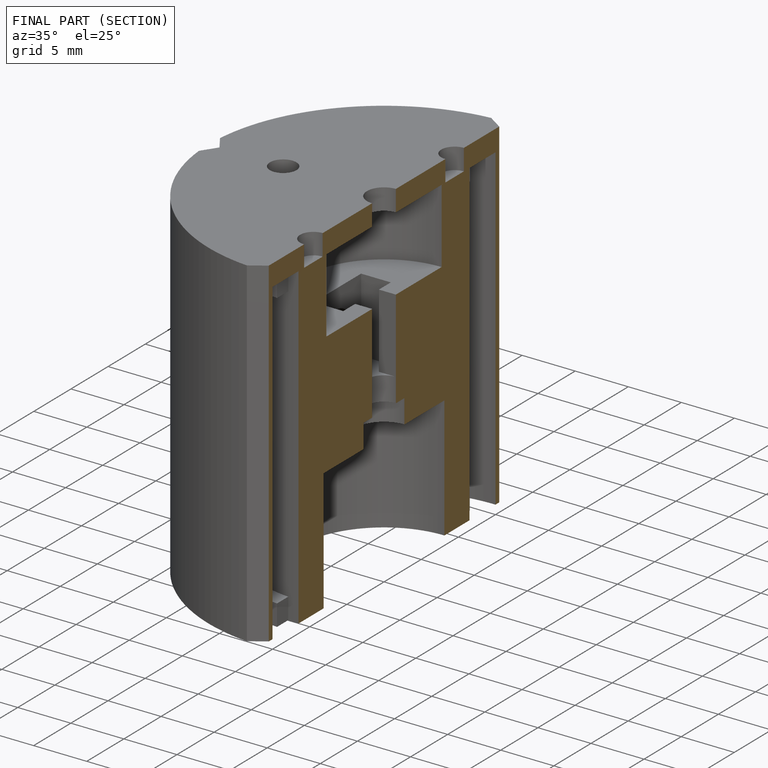
[diagram: finished part — half-section view (interior)]
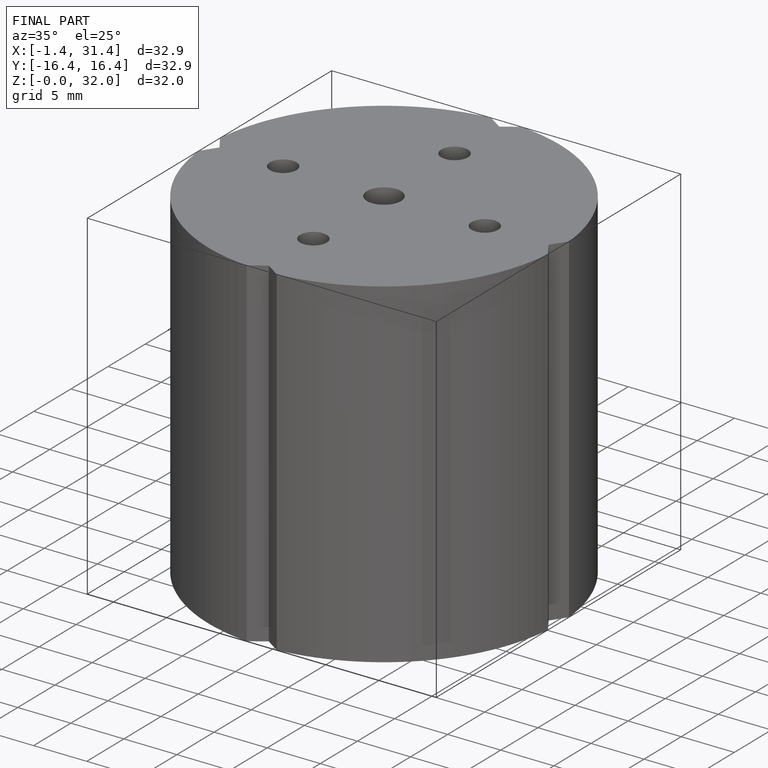
[diagram: finished part — iso view with bounding-box wireframe]
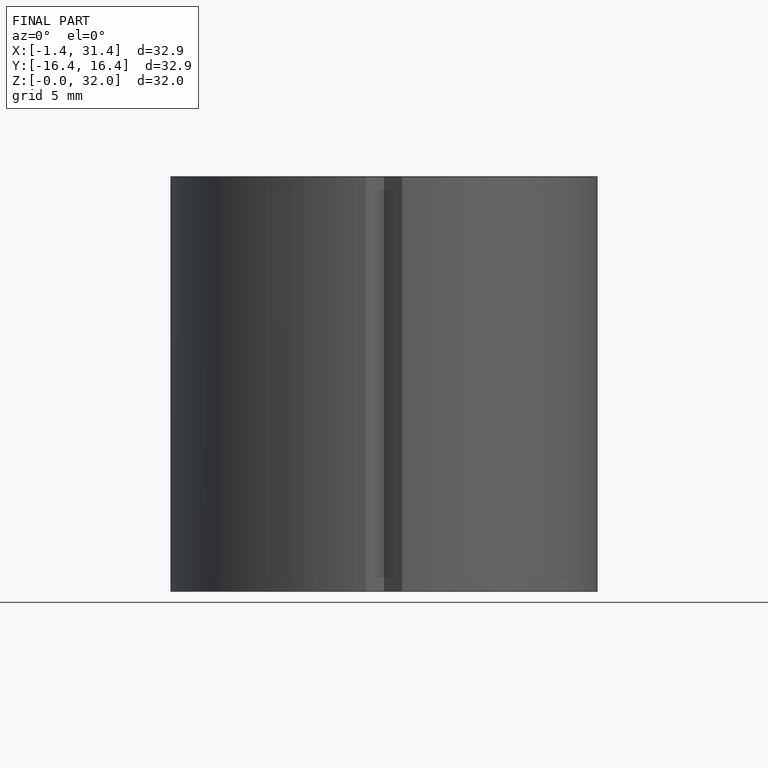
[diagram: finished part — front view with bounding-box wireframe]
